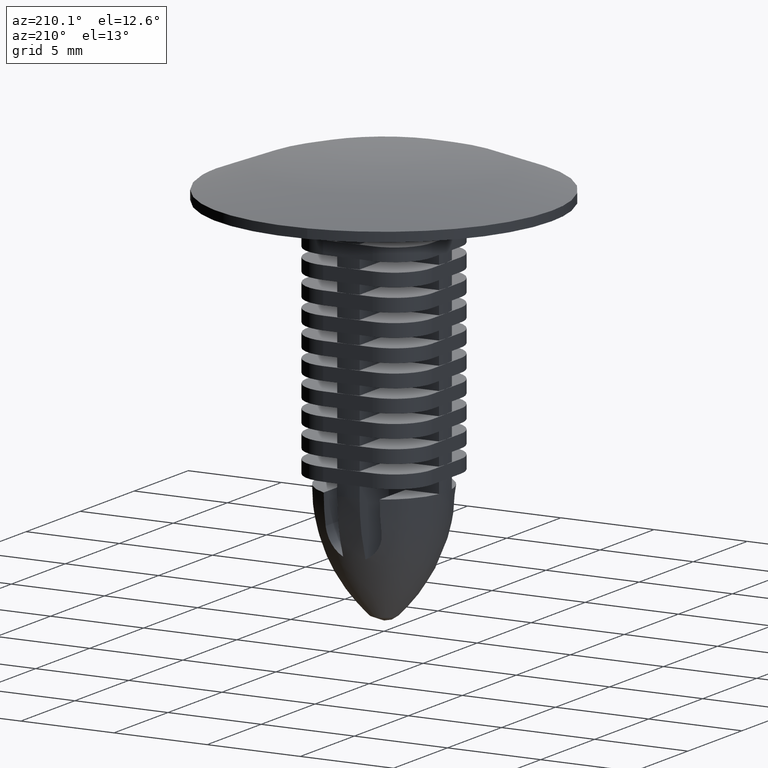
[diagram: clean part render]
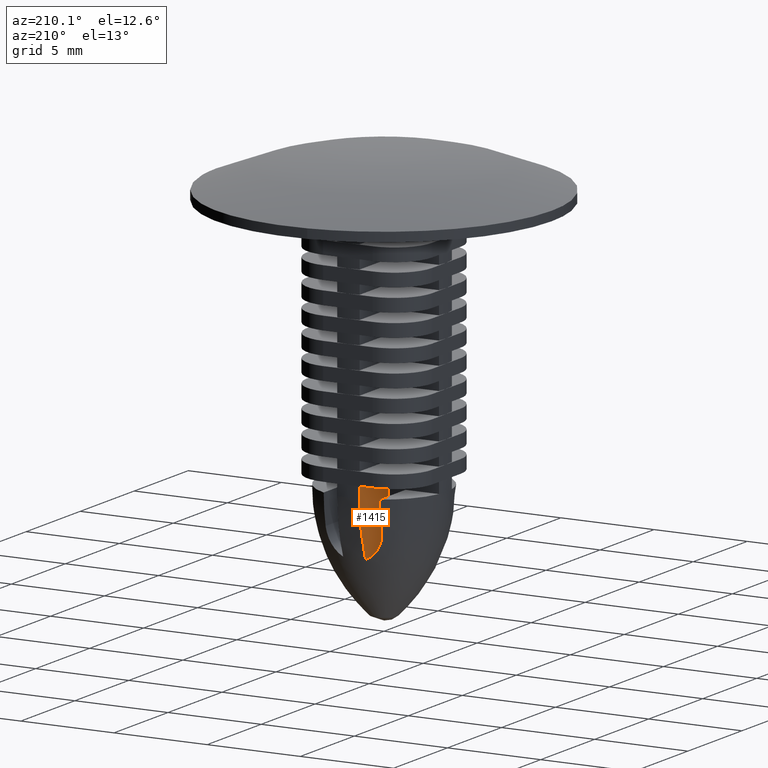
[diagram: same view with one face highlighted and labeled with its STEP entity id]
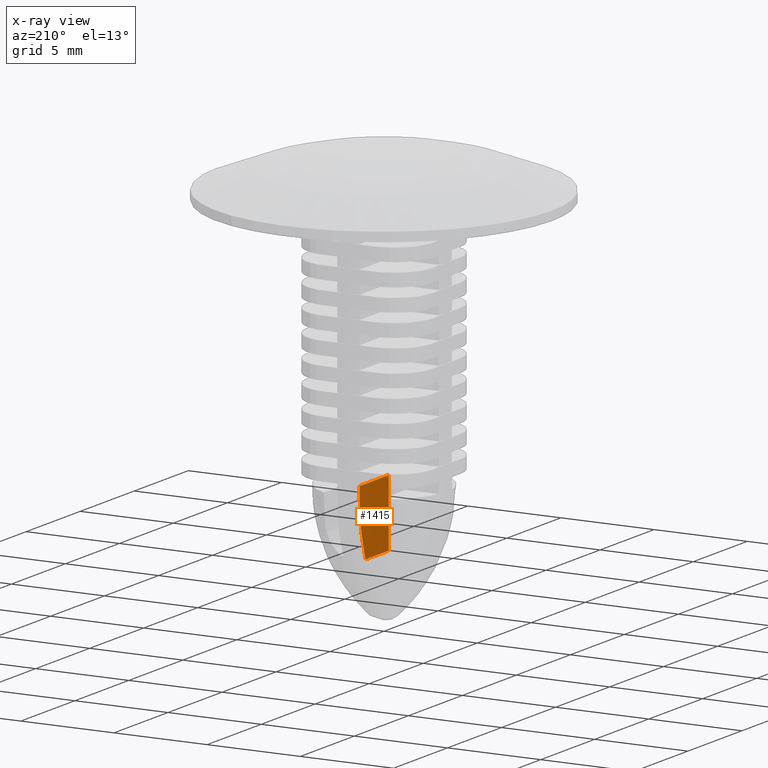
[diagram: x-ray of the same camera — body ghosted, the highlighted face saturated]
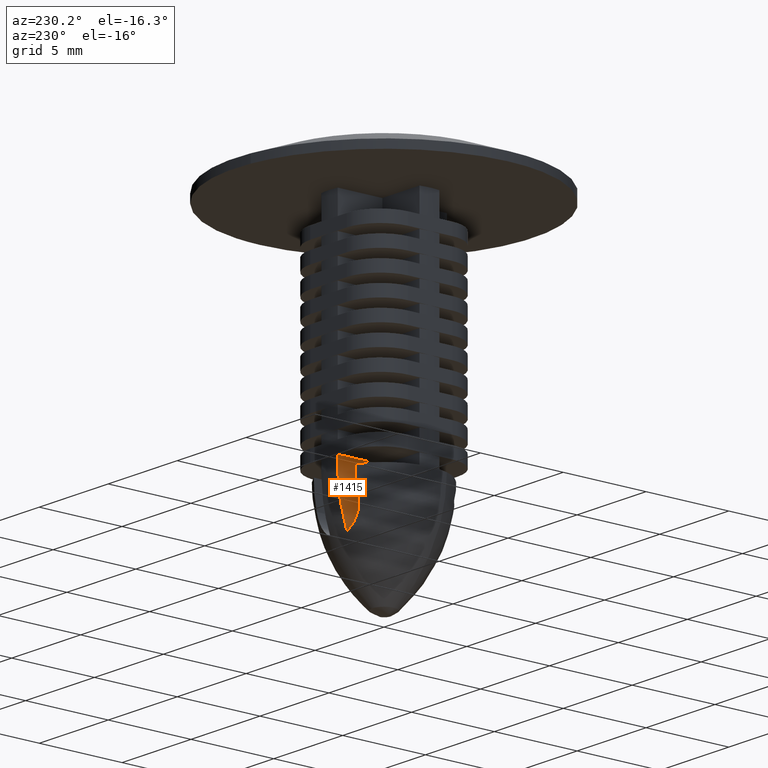
[diagram: same view with one face highlighted and labeled with its STEP entity id]
A machine part, auxiliary view. The second image highlights one B-rep face of the part: STEP entity #1415.
The next image is the same camera in x-ray: the body ghosted, the highlighted face saturated — about 0% of this face is hidden behind the body in this view.
A second angle (auxiliary view) of the same face is appended — the face is thin or edge-on in the first view.
In plain terms, the highlighted face is a freeform B-spline surface patch.
Its self-contained STEP definition (entity closure, byte-faithful):
#363=CARTESIAN_POINT('',(-0.599999999999988,2.745732762280630,-19.0));
#364=VERTEX_POINT('',#363);
#388=CARTESIAN_POINT('',(-0.599999999999991,3.295830699535400,-16.0));
#389=VERTEX_POINT('',#388);
#390=CARTESIAN_POINT('',(-0.600000000000009,2.745732762280619,-18.999999999999961));
#391=CARTESIAN_POINT('',(-0.600000000000009,2.835569811217700,-18.763859838262668));
#392=CARTESIAN_POINT('',(-0.600000000000009,2.914775245168330,-18.523485190039128));
#393=CARTESIAN_POINT('',(-0.600000000000009,3.017495992514557,-18.156515734631540));
#394=CARTESIAN_POINT('',(-0.600000000000009,3.049050095833043,-18.033122712626628));
#395=CARTESIAN_POINT('',(-0.600000000000009,3.085083670803928,-17.877523636341799));
#396=CARTESIAN_POINT('',(-0.600000000000009,3.092119836093876,-17.846335892513430));
#397=CARTESIAN_POINT('',(-0.600000000000009,3.105849390739695,-17.783823879967240));
#398=CARTESIAN_POINT('',(-0.600000000000009,3.112527662963392,-17.752576901073802));
#399=CARTESIAN_POINT('',(-0.600000000000009,3.132282841699175,-17.657460647935871));
#400=CARTESIAN_POINT('',(-0.600000000000009,3.144699563661173,-17.594012836913080));
#401=CARTESIAN_POINT('',(-0.600000000000009,3.249742564576795,-17.022653343889090));
#402=CARTESIAN_POINT('',(-0.600000000000009,3.295830775385470,-16.512457643726759));
#403=CARTESIAN_POINT('',(-0.599999999999991,3.295830699535400,-16.0));
#404=B_SPLINE_CURVE_WITH_KNOTS('',3,(#390,#391,#392,#393,#394,#395,#396,#397,#398,#399,#400,#401,#402,#403),.UNSPECIFIED.,.F.,.U.,(4,2,2,2,2,2,4),(0.0,0.249999999999995,0.374999999999992,0.406249999999990,0.437499999999989,0.499999999999989,1.0),.UNSPECIFIED.);
#405=EDGE_CURVE('',#364,#389,#404,.T.);
#859=CARTESIAN_POINT('',(-0.599999999999988,0.600000000000043,-19.0));
#860=VERTEX_POINT('',#859);
#874=CARTESIAN_POINT('',(-0.599999999999988,0.600000000000043,-19.0));
#875=CARTESIAN_POINT('',(-0.599999999999988,2.745732762280630,-19.0));
#876=QUASI_UNIFORM_CURVE('',1,(#874,#875),.UNSPECIFIED.,.F.,.U.);
#877=EDGE_CURVE('',#860,#364,#876,.T.);
#1353=CARTESIAN_POINT('',(-0.599999999999991,3.295830699535400,-15.400000000000000));
#1354=VERTEX_POINT('',#1353);
#1355=CARTESIAN_POINT('',(-0.599999999999991,3.295830699535400,-16.0));
#1356=CARTESIAN_POINT('',(-0.599999999999991,3.295830699535400,-15.400000000000000));
#1357=QUASI_UNIFORM_CURVE('',1,(#1355,#1356),.UNSPECIFIED.,.F.,.U.);
#1358=EDGE_CURVE('',#389,#1354,#1357,.T.);
#1393=CARTESIAN_POINT('',(-0.599999999999991,0.465343287089789,-15.220179601446810));
#1394=CARTESIAN_POINT('',(-0.599999999999991,0.465343287089789,-19.179820108874619));
#1395=CARTESIAN_POINT('',(-0.599999999999991,3.430487508856039,-15.220179601446810));
#1396=CARTESIAN_POINT('',(-0.599999999999991,3.430487508856039,-19.179820108874619));
#1397=B_SPLINE_SURFACE_WITH_KNOTS('',1,1,((#1393,#1395),(#1394,#1396)),.UNSPECIFIED.,.F.,.F.,.U.,(2,2),(2,2),(0.0,3.959640507427809),(0.0,2.965144221766250),.UNSPECIFIED.);
#1398=CARTESIAN_POINT('',(-0.599999999999991,0.600000000000009,-15.400000000000000));
#1399=VERTEX_POINT('',#1398);
#1400=CARTESIAN_POINT('',(-0.599999999999988,0.600000000000043,-19.0));
#1401=CARTESIAN_POINT('',(-0.599999999999991,0.600000000000009,-15.400000000000000));
#1402=QUASI_UNIFORM_CURVE('',1,(#1400,#1401),.UNSPECIFIED.,.F.,.U.);
#1403=EDGE_CURVE('',#860,#1399,#1402,.T.);
#1404=ORIENTED_EDGE('',*,*,#1403,.T.);
#1405=CARTESIAN_POINT('',(-0.599999999999991,0.600000000000009,-15.400000000000000));
#1406=CARTESIAN_POINT('',(-0.599999999999991,3.295830699535400,-15.400000000000000));
#1407=QUASI_UNIFORM_CURVE('',1,(#1405,#1406),.UNSPECIFIED.,.F.,.U.);
#1408=EDGE_CURVE('',#1399,#1354,#1407,.T.);
#1409=ORIENTED_EDGE('',*,*,#1408,.T.);
#1410=ORIENTED_EDGE('',*,*,#1358,.F.);
#1411=ORIENTED_EDGE('',*,*,#405,.F.);
#1412=ORIENTED_EDGE('',*,*,#877,.F.);
#1413=EDGE_LOOP('',(#1404,#1409,#1410,#1411,#1412));
#1414=FACE_OUTER_BOUND('',#1413,.T.);
#1415=ADVANCED_FACE('',(#1414),#1397,.F.);